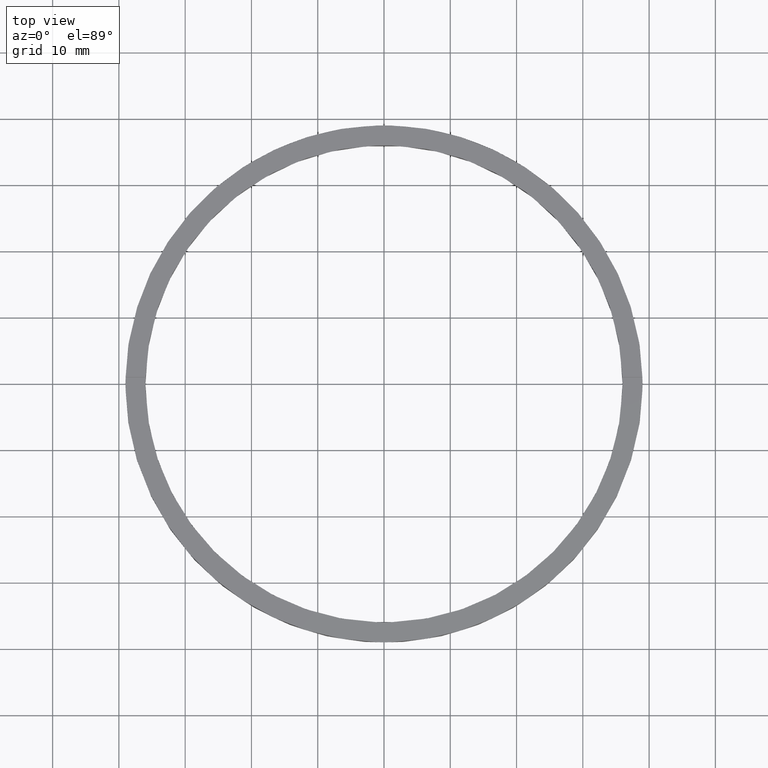
[diagram: clean part render]
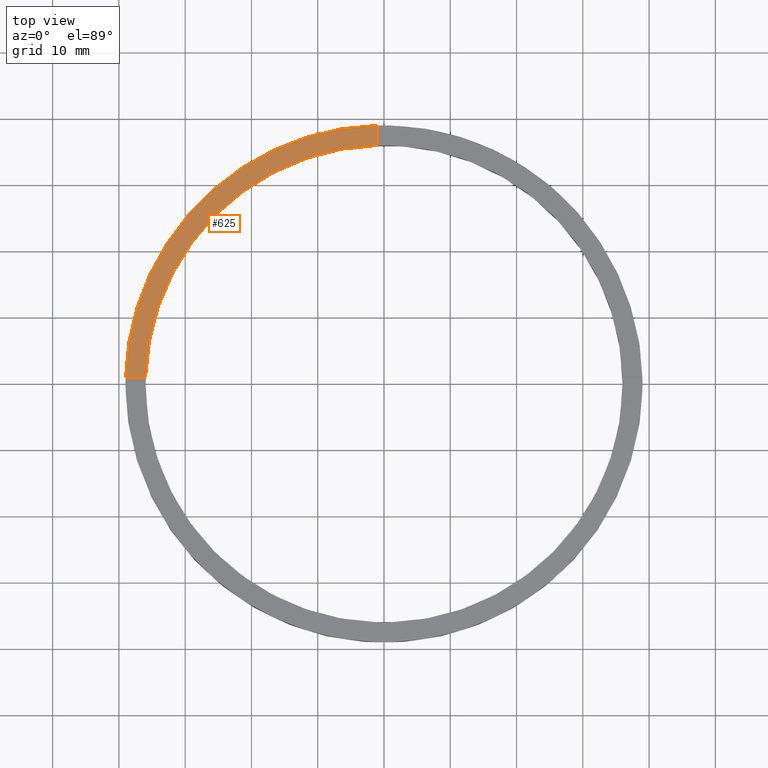
[diagram: same view with one face highlighted and labeled with its STEP entity id]
A machine part, top view. The second image highlights one B-rep face of the part: STEP entity #625.
In plain terms, the highlighted planar face has unit normal (0, 0, 1).
Its self-contained STEP definition (entity closure, byte-faithful):
#3 = AXIS2_PLACEMENT_3D ( 'NONE', #327, #505, #560 ) ;
#19 = CARTESIAN_POINT ( 'NONE',  ( 0.000000000000000000, 0.000000000000000000, 3.500000000000000000 ) ) ;
#56 = DIRECTION ( 'NONE',  ( -1.000000000000000000, -1.951563910473907735E-16, 0.000000000000000000 ) ) ;
#78 = VECTOR ( 'NONE', #56, 1000.000000000000000 ) ;
#81 = EDGE_CURVE ( 'NONE', #238, #465, #541, .T. ) ;
#111 = VERTEX_POINT ( 'NONE', #490 ) ;
#130 = DIRECTION ( 'NONE',  ( 1.000000000000000000, 0.000000000000000000, 0.000000000000000000 ) ) ;
#132 = CARTESIAN_POINT ( 'NONE',  ( -1.000000000000025313, 35.98610843089315381, 3.500000000000000000 ) ) ;
#146 = AXIS2_PLACEMENT_3D ( 'NONE', #665, #722, #422 ) ;
#172 = EDGE_CURVE ( 'NONE', #227, #111, #562, .T. ) ;
#195 = CARTESIAN_POINT ( 'NONE',  ( -1.000000000000025313, 28.99999999999999645, 3.500000000000000000 ) ) ;
#204 = EDGE_CURVE ( 'NONE', #238, #227, #308, .T. ) ;
#216 = ORIENTED_EDGE ( 'NONE', *, *, #172, .F. ) ;
#227 = VERTEX_POINT ( 'NONE', #132 ) ;
#235 = ORIENTED_EDGE ( 'NONE', *, *, #473, .F. ) ;
#238 = VERTEX_POINT ( 'NONE', #780 ) ;
#268 = PLANE ( 'NONE',  #146 ) ;
#269 = DIRECTION ( 'NONE',  ( -0.000000000000000000, -1.000000000000000000, -0.000000000000000000 ) ) ;
#290 = VECTOR ( 'NONE', #269, 1000.000000000000000 ) ;
#308 = LINE ( 'NONE', #195, #290 ) ;
#327 = CARTESIAN_POINT ( 'NONE',  ( 0.000000000000000000, 0.000000000000000000, 3.500000000000000000 ) ) ;
#353 = FACE_OUTER_BOUND ( 'NONE', #695, .T. ) ;
#355 = CARTESIAN_POINT ( 'NONE',  ( -38.98717737923585247, 0.9999999999999720224, 3.500000000000000000 ) ) ;
#356 = LINE ( 'NONE', #715, #78 ) ;
#422 = DIRECTION ( 'NONE',  ( 1.000000000000000000, 0.000000000000000000, -0.000000000000000000 ) ) ;
#451 = ORIENTED_EDGE ( 'NONE', *, *, #204, .F. ) ;
#465 = VERTEX_POINT ( 'NONE', #355 ) ;
#473 = EDGE_CURVE ( 'NONE', #111, #465, #356, .T. ) ;
#490 = CARTESIAN_POINT ( 'NONE',  ( -35.98610843089316091, 0.9999999999999726885, 3.500000000000000000 ) ) ;
#504 = ORIENTED_EDGE ( 'NONE', *, *, #81, .T. ) ;
#505 = DIRECTION ( 'NONE',  ( 0.000000000000000000, 0.000000000000000000, 1.000000000000000000 ) ) ;
#541 = CIRCLE ( 'NONE', #652, 39.00000000000000000 ) ;
#560 = DIRECTION ( 'NONE',  ( 1.000000000000000000, 0.000000000000000000, 0.000000000000000000 ) ) ;
#562 = CIRCLE ( 'NONE', #3, 36.00000000000000000 ) ;
#625 = ADVANCED_FACE ( 'NONE', ( #353 ), #268, .T. ) ;
#652 = AXIS2_PLACEMENT_3D ( 'NONE', #19, #682, #130 ) ;
#665 = CARTESIAN_POINT ( 'NONE',  ( 0.000000000000000000, 0.000000000000000000, 3.500000000000000000 ) ) ;
#682 = DIRECTION ( 'NONE',  ( 0.000000000000000000, 0.000000000000000000, 1.000000000000000000 ) ) ;
#695 = EDGE_LOOP ( 'NONE', ( #451, #504, #235, #216 ) ) ;
#715 = CARTESIAN_POINT ( 'NONE',  ( -29.00000000000018474, 0.9999999999999740208, 3.500000000000000000 ) ) ;
#722 = DIRECTION ( 'NONE',  ( 0.000000000000000000, 0.000000000000000000, 1.000000000000000000 ) ) ;
#780 = CARTESIAN_POINT ( 'NONE',  ( -1.000000000000025313, 38.98717737923585247, 3.500000000000000000 ) ) ;